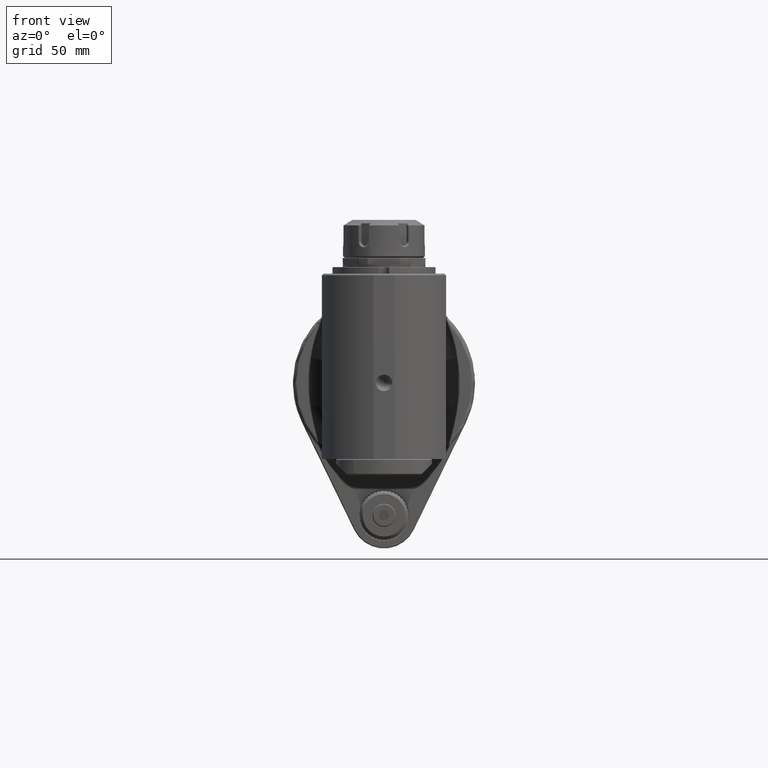
[diagram: clean part render]
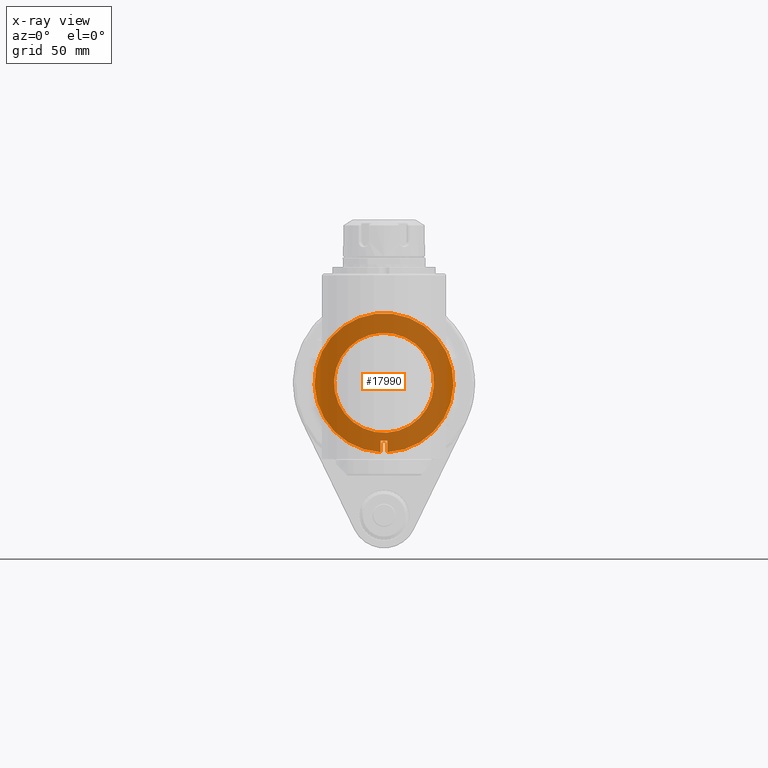
[diagram: x-ray — body ghosted, one internal face saturated and labeled with its STEP entity id]
A machine part, front view, then the same camera in x-ray: the body is ghosted and one INTERNAL B-rep face — a face not visible from any outside direction — is saturated and labeled: STEP entity #17990.
In plain terms, the highlighted planar face has unit normal (0, -1, 0).
Its self-contained STEP definition (entity closure, byte-faithful):
#167=FACE_BOUND('',#3342,.T.);
#1186=CIRCLE('',#19419,42.);
#1194=CIRCLE('',#19434,30.20001848219);
#2270=FACE_OUTER_BOUND('',#3341,.T.);
#3341=EDGE_LOOP('',(#13703,#13704,#13705,#13706));
#3342=EDGE_LOOP('',(#13707));
#4700=LINE('',#28838,#6194);
#4710=LINE('',#28870,#6204);
#4712=LINE('',#28874,#6206);
#6194=VECTOR('',#22636,6.951153539297);
#6204=VECTOR('',#22668,6.951153539128);
#6206=VECTOR('',#22674,4.05);
#7744=VERTEX_POINT('',#28825);
#7745=VERTEX_POINT('',#28827);
#7748=VERTEX_POINT('',#28837);
#7759=VERTEX_POINT('',#28868);
#7760=VERTEX_POINT('',#28875);
#9890=EDGE_CURVE('',#7744,#7745,#1186,.T.);
#9894=EDGE_CURVE('',#7745,#7748,#4700,.T.);
#9911=EDGE_CURVE('',#7759,#7744,#4710,.T.);
#9913=EDGE_CURVE('',#7748,#7759,#4712,.T.);
#9914=EDGE_CURVE('',#7760,#7760,#1194,.T.);
#13703=ORIENTED_EDGE('',*,*,#9890,.F.);
#13704=ORIENTED_EDGE('',*,*,#9911,.F.);
#13705=ORIENTED_EDGE('',*,*,#9913,.F.);
#13706=ORIENTED_EDGE('',*,*,#9894,.F.);
#13707=ORIENTED_EDGE('',*,*,#9914,.F.);
#17294=PLANE('',#19433);
#17990=ADVANCED_FACE('',(#2270,#167),#17294,.T.);
#19419=AXIS2_PLACEMENT_3D('',#28828,#22630,#22631);
#19433=AXIS2_PLACEMENT_3D('',#28873,#22672,#22673);
#19434=AXIS2_PLACEMENT_3D('',#28876,#22675,#22676);
#22630=DIRECTION('center_axis',(0.,1.,0.));
#22631=DIRECTION('ref_axis',(-0.0482142857142921,0.,-0.998837015059544));
#22636=DIRECTION('',(-3.040388243086E-13,0.,1.));
#22668=DIRECTION('',(-3.067220835346E-13,0.,-1.));
#22672=DIRECTION('center_axis',(0.,-1.,0.));
#22673=DIRECTION('ref_axis',(-0.707106781186548,0.,0.707106781186548));
#22674=DIRECTION('',(-1.,0.,0.));
#22675=DIRECTION('center_axis',(0.,-1.,0.));
#22676=DIRECTION('ref_axis',(0.707106781186498,0.,-0.707106781186598));
#28825=CARTESIAN_POINT('',(-2.0250000130818,30.,-41.9511540851306));
#28827=CARTESIAN_POINT('',(2.0250000130802,30.,-41.9511540852135));
#28828=CARTESIAN_POINT('Origin',(0.,30.,0.));
#28837=CARTESIAN_POINT('',(2.025,30.,-35.));
#28838=CARTESIAN_POINT('',(2.025000000002,30.,-41.9511535393));
#28868=CARTESIAN_POINT('',(-2.025,30.,-35.));
#28870=CARTESIAN_POINT('',(-2.025,30.,-35.));
#28873=CARTESIAN_POINT('Origin',(0.,30.,0.));
#28874=CARTESIAN_POINT('',(2.025,30.,-35.));
#28875=CARTESIAN_POINT('',(-21.35463786072,30.,21.35463786072));
#28876=CARTESIAN_POINT('Origin',(2.821672307846E-13,30.,4.589164297141E-13));